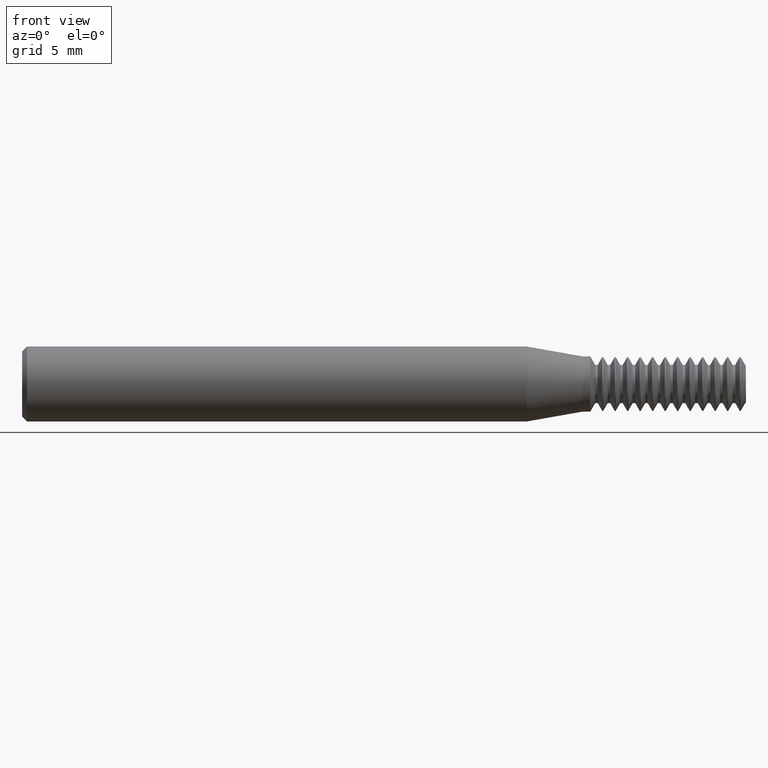
[diagram: clean part render]
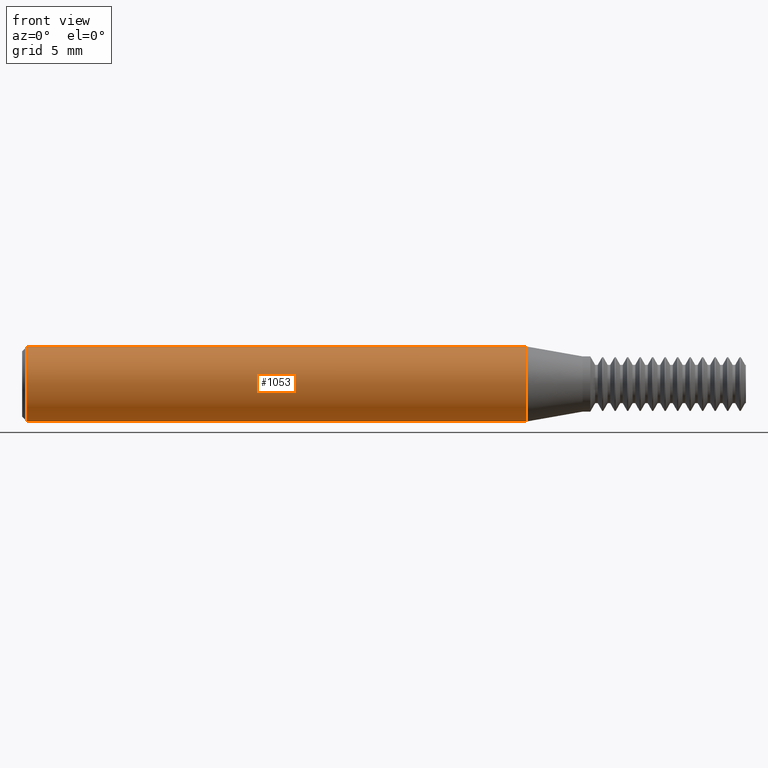
[diagram: same view with one face highlighted and labeled with its STEP entity id]
A machine part, front view. The second image highlights one B-rep face of the part: STEP entity #1053.
In plain terms, the highlighted cylindrical surface (partial cylindrical patch) has radius 2.9972 mm, axis along (1, -0, -0).
Its self-contained STEP definition (entity closure, byte-faithful):
#38 = VERTEX_POINT ( 'NONE', #1970 ) ;
#68 = VERTEX_POINT ( 'NONE', #1514 ) ;
#75 = CIRCLE ( 'NONE', #1798, 0.1179999999999999938 ) ;
#99 = EDGE_CURVE ( 'NONE', #38, #2177, #1125, .T. ) ;
#119 = DIRECTION ( 'NONE',  ( 0.0000000000000000000, 0.0000000000000000000, -1.000000000000000000 ) ) ;
#306 = DIRECTION ( 'NONE',  ( 1.000000000000000000, -0.0000000000000000000, -0.0000000000000000000 ) ) ;
#412 = EDGE_CURVE ( 'NONE', #2177, #68, #75, .T. ) ;
#451 = EDGE_LOOP ( 'NONE', ( #1681, #2268, #1570, #2424 ) ) ;
#479 = AXIS2_PLACEMENT_3D ( 'NONE', #755, #1634, #960 ) ;
#524 = CARTESIAN_POINT ( 'NONE',  ( 2.279999999999999805, 1.445083222993876666E-17, 0.1179999999999999938 ) ) ;
#563 = VECTOR ( 'NONE', #306, 39.37007874015748143 ) ;
#626 = EDGE_CURVE ( 'NONE', #2294, #68, #2145, .T. ) ;
#755 = CARTESIAN_POINT ( 'NONE',  ( 0.01500000000000052333, 0.0000000000000000000, 0.0000000000000000000 ) ) ;
#781 = CARTESIAN_POINT ( 'NONE',  ( 2.279999999999999805, 0.0000000000000000000, -0.1179999999999999938 ) ) ;
#960 = DIRECTION ( 'NONE',  ( 0.0000000000000000000, 0.0000000000000000000, 1.000000000000000000 ) ) ;
#1053 = ADVANCED_FACE ( 'NONE', ( #1796 ), #1427, .T. ) ;
#1125 = LINE ( 'NONE', #524, #563 ) ;
#1183 = DIRECTION ( 'NONE',  ( 1.000000000000000000, -0.0000000000000000000, -0.0000000000000000000 ) ) ;
#1340 = DIRECTION ( 'NONE',  ( 0.0000000000000000000, 0.0000000000000000000, -1.000000000000000000 ) ) ;
#1427 = CYLINDRICAL_SURFACE ( 'NONE', #1902, 0.1179999999999999938 ) ;
#1514 = CARTESIAN_POINT ( 'NONE',  ( 1.589999999999999636, 0.0000000000000000000, -0.1179999999999999938 ) ) ;
#1546 = DIRECTION ( 'NONE',  ( 1.000000000000000000, -0.0000000000000000000, -0.0000000000000000000 ) ) ;
#1570 = ORIENTED_EDGE ( 'NONE', *, *, #626, .T. ) ;
#1634 = DIRECTION ( 'NONE',  ( 1.000000000000000000, -0.0000000000000000000, -0.0000000000000000000 ) ) ;
#1681 = ORIENTED_EDGE ( 'NONE', *, *, #99, .F. ) ;
#1706 = VECTOR ( 'NONE', #2298, 39.37007874015748143 ) ;
#1723 = CIRCLE ( 'NONE', #479, 0.1179999999999999938 ) ;
#1781 = EDGE_CURVE ( 'NONE', #38, #2294, #1723, .T. ) ;
#1796 = FACE_OUTER_BOUND ( 'NONE', #451, .T. ) ;
#1798 = AXIS2_PLACEMENT_3D ( 'NONE', #1856, #1183, #119 ) ;
#1856 = CARTESIAN_POINT ( 'NONE',  ( 1.589999999999999636, 0.0000000000000000000, 0.0000000000000000000 ) ) ;
#1902 = AXIS2_PLACEMENT_3D ( 'NONE', #2620, #1546, #1340 ) ;
#1970 = CARTESIAN_POINT ( 'NONE',  ( 0.01500000000000052333, 1.445083222993876666E-17, 0.1179999999999999938 ) ) ;
#2145 = LINE ( 'NONE', #781, #1706 ) ;
#2177 = VERTEX_POINT ( 'NONE', #2587 ) ;
#2215 = CARTESIAN_POINT ( 'NONE',  ( 0.01500000000000052333, 0.0000000000000000000, -0.1179999999999999938 ) ) ;
#2268 = ORIENTED_EDGE ( 'NONE', *, *, #1781, .T. ) ;
#2294 = VERTEX_POINT ( 'NONE', #2215 ) ;
#2298 = DIRECTION ( 'NONE',  ( 1.000000000000000000, -0.0000000000000000000, -0.0000000000000000000 ) ) ;
#2424 = ORIENTED_EDGE ( 'NONE', *, *, #412, .F. ) ;
#2587 = CARTESIAN_POINT ( 'NONE',  ( 1.589999999999999636, 1.445083222993876666E-17, 0.1179999999999999938 ) ) ;
#2620 = CARTESIAN_POINT ( 'NONE',  ( 2.279999999999999805, 0.0000000000000000000, 0.0000000000000000000 ) ) ;